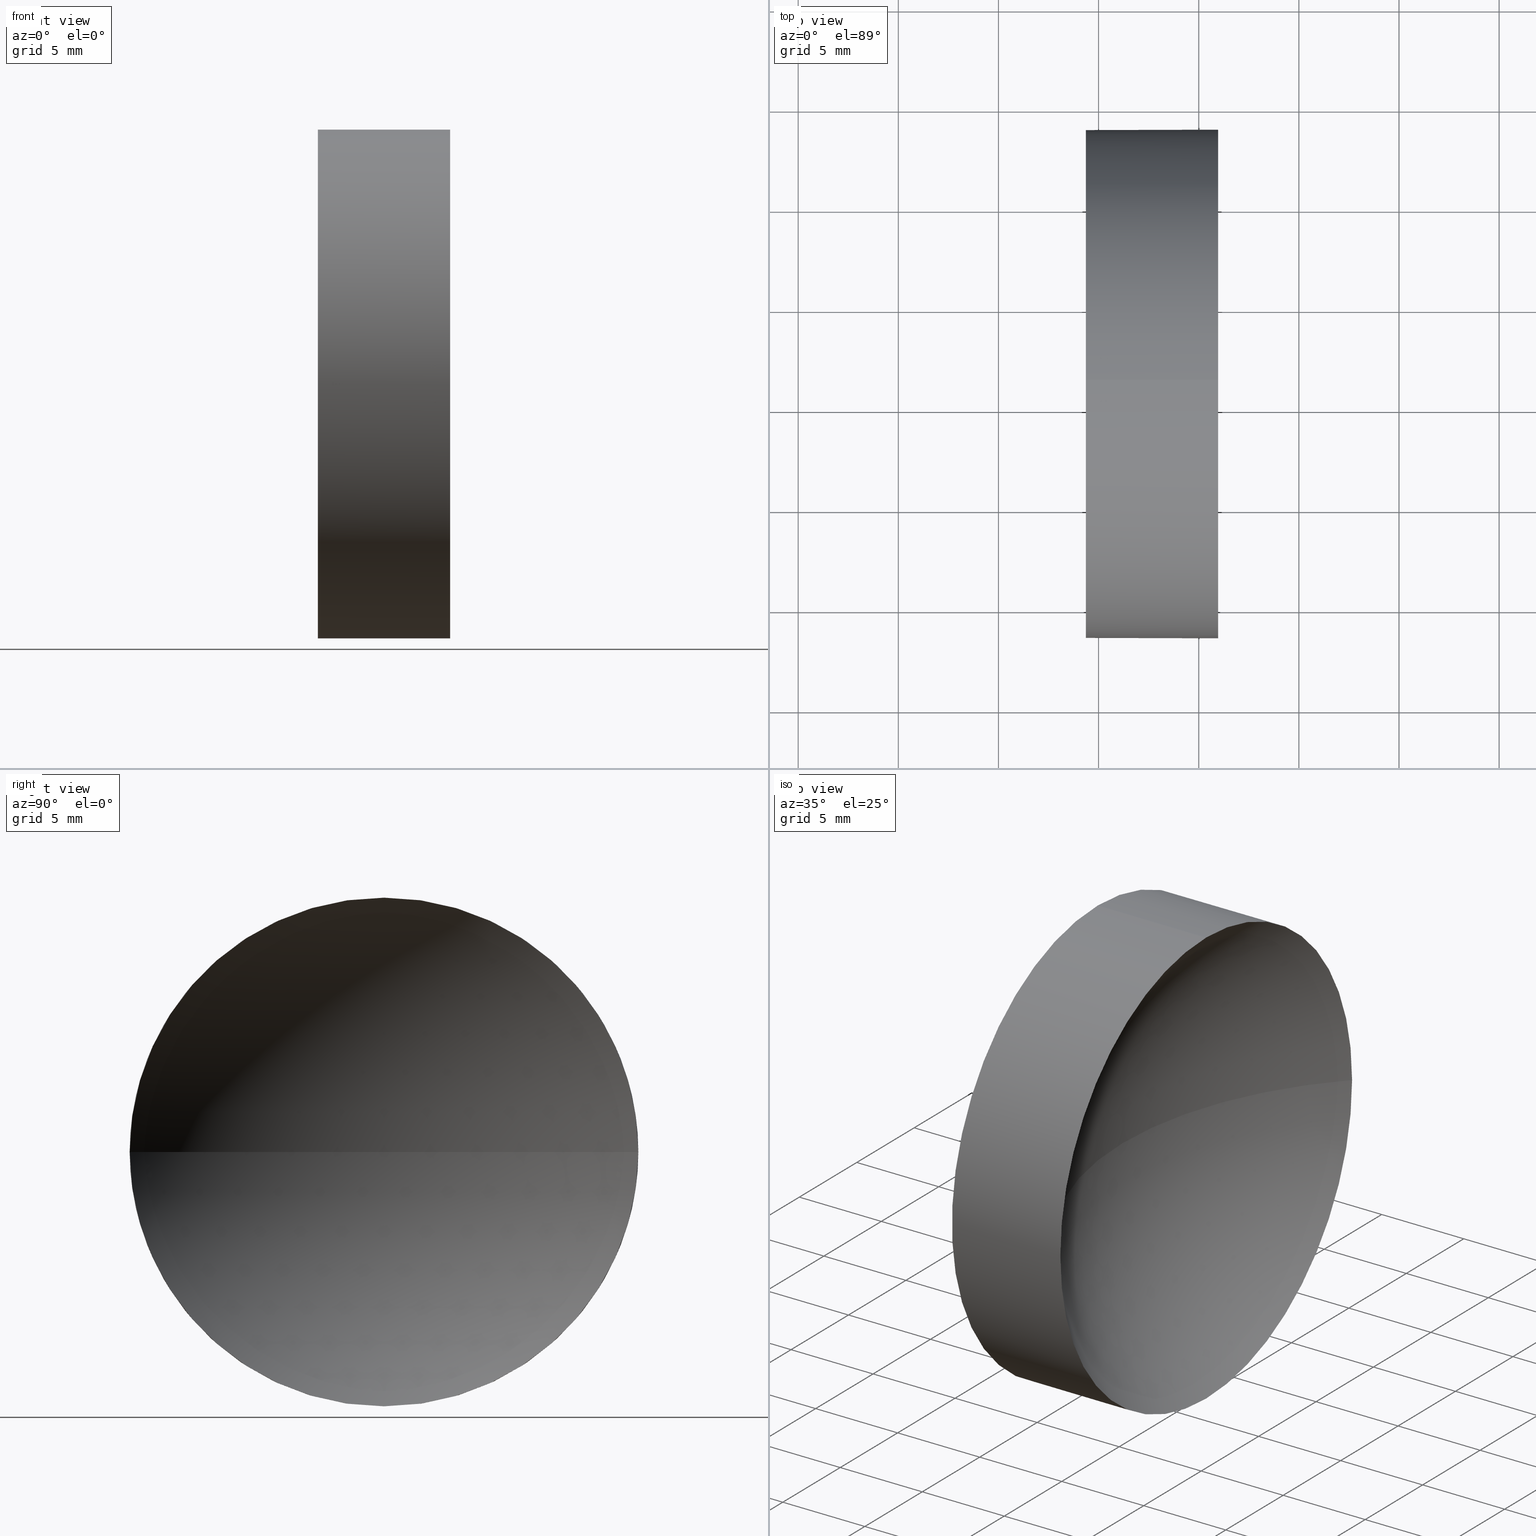
[diagram: canonical four-view strip — front | top / right | iso, engineering-drawing reading convention]
A machine part, canonical four-view strip (front | top / right | iso — engineering-drawing reading convention). The complete STEP part file that produces these views, byte-faithful:
ISO-10303-21;
HEADER;
FILE_DESCRIPTION (( 'STEP AP214' ),
    '1' );
FILE_NAME ('120264.STEP',
    '2019-06-25T03:04:50',
    ( '' ),
    ( '' ),
    'SwSTEP 2.0',
    'SolidWorks 2016',
    '' );
FILE_SCHEMA (( 'AUTOMOTIVE_DESIGN' ));
ENDSEC;

DATA;
#1 = APPLICATION_PROTOCOL_DEFINITION ( 'draft international standard', 'automotive_design', 1998, #42 ) ;
#2 = UNCERTAINTY_MEASURE_WITH_UNIT (LENGTH_MEASURE( 1.000000000000000100E-005 ), #59, 'distance_accuracy_value', 'NONE');
#3 = COLOUR_RGB ( '',1.000000000000000000, 1.000000000000000000, 1.000000000000000000 ) ;
#4 = CARTESIAN_POINT ( 'NONE',  ( 139.2029307920347200, 71.19398908659371700, 0.0000000000000000000 ) ) ;
#5 = PRODUCT_RELATED_PRODUCT_CATEGORY ( 'part', '', ( #98 ) ) ;
#6 =( NAMED_UNIT ( * ) SI_UNIT ( $, .STERADIAN. ) SOLID_ANGLE_UNIT ( ) );
#7 =( NAMED_UNIT ( * ) SI_UNIT ( $, .STERADIAN. ) SOLID_ANGLE_UNIT ( ) );
#8 = ORIENTED_EDGE ( 'NONE', *, *, #110, .T. ) ;
#9 = PRESENTATION_LAYER_ASSIGNMENT (  '', '', ( #184 ) ) ;
#10 = CARTESIAN_POINT ( 'NONE',  ( 125.9716950220848900, 71.19398908659370300, 0.0000000000000000000 ) ) ;
#11 = CARTESIAN_POINT ( 'NONE',  ( 120.8629307920347200, 71.19398908659371700, 0.0000000000000000000 ) ) ;
#12 = EDGE_CURVE ( 'NONE', #167, #62, #173, .T. ) ;
#13 = AXIS2_PLACEMENT_3D ( 'NONE', #4, #126, #43 ) ;
#14 = AXIS2_PLACEMENT_3D ( 'NONE', #89, #103, #102 ) ;
#15 = DIRECTION ( 'NONE',  ( -1.000000000000000000, -0.0000000000000000000, -0.0000000000000000000 ) ) ;
#16 = FILL_AREA_STYLE_COLOUR ( '', #68 ) ;
#17 = ORIENTED_EDGE ( 'NONE', *, *, #110, .F. ) ;
#18 = CARTESIAN_POINT ( 'NONE',  ( 125.9716950220848900, 83.89398908659370600, 1.555301434917137400E-015 ) ) ;
#19 = CARTESIAN_POINT ( 'NONE',  ( 125.9716950220848900, 71.19398908659370300, 0.0000000000000000000 ) ) ;
#20 = CARTESIAN_POINT ( 'NONE',  ( 119.3629307920347200, 71.19398908659370300, 12.70000000000000300 ) ) ;
#21 = VERTEX_POINT ( 'NONE', #45 ) ;
#22 = ORIENTED_EDGE ( 'NONE', *, *, #180, .F. ) ;
#23 = ADVANCED_FACE ( 'NONE', ( #178 ), #57, .F. ) ;
#24 = VECTOR ( 'NONE', #15, 1000.000000000000000 ) ;
#25 = CARTESIAN_POINT ( 'NONE',  ( 119.3629307920347200, 71.19398908659370300, 0.0000000000000000000 ) ) ;
#26 = CARTESIAN_POINT ( 'NONE',  ( 111.9552297575605700, 71.19398908659370300, 0.0000000000000000000 ) ) ;
#27 =( GEOMETRIC_REPRESENTATION_CONTEXT ( 3 ) GLOBAL_UNCERTAINTY_ASSIGNED_CONTEXT ( ( #143 ) ) GLOBAL_UNIT_ASSIGNED_CONTEXT ( ( #107, #175, #132 ) ) REPRESENTATION_CONTEXT ( 'NONE', 'WORKASPACE' ) );
#28 = ORIENTED_EDGE ( 'NONE', *, *, #55, .F. ) ;
#29 = LINE ( 'NONE', #147, #24 ) ;
#30 = VERTEX_POINT ( 'NONE', #20 ) ;
#31 = CARTESIAN_POINT ( 'NONE',  ( 125.9716950220848900, 71.19398908659370300, 0.0000000000000000000 ) ) ;
#32 = EDGE_CURVE ( 'NONE', #62, #133, #111, .T. ) ;
#33 = AXIS2_PLACEMENT_3D ( 'NONE', #19, #146, #159 ) ;
#34 = SURFACE_STYLE_USAGE ( .BOTH. , #47 ) ;
#35 = CIRCLE ( 'NONE', #65, 12.70000000000000300 ) ;
#36 = ORIENTED_EDGE ( 'NONE', *, *, #41, .F. ) ;
#37 = CARTESIAN_POINT ( 'NONE',  ( 139.2029307920347200, 71.19398908659371700, 0.0000000000000000000 ) ) ;
#38 = EDGE_LOOP ( 'NONE', ( #22, #162, #155, #104, #17 ) ) ;
#39 = PRESENTATION_LAYER_ASSIGNMENT (  '', '', ( #161 ) ) ;
#40 = CARTESIAN_POINT ( 'NONE',  ( 125.9716950220848900, 71.19398908659370300, -12.70000000000000300 ) ) ;
#41 = EDGE_CURVE ( 'NONE', #62, #134, #73, .T. ) ;
#42 = APPLICATION_CONTEXT ( 'automotive_design' ) ;
#43 = DIRECTION ( 'NONE',  ( 0.0000000000000000000, -1.000000000000000000, 0.0000000000000000000 ) ) ;
#44 = ORIENTED_EDGE ( 'NONE', *, *, #165, .T. ) ;
#45 = CARTESIAN_POINT ( 'NONE',  ( 125.9716950220848900, 58.49398908659371400, 0.0000000000000000000 ) ) ;
#46 = PRODUCT_DEFINITION_FORMATION_WITH_SPECIFIED_SOURCE ( '�κ�', '', #98, .NOT_KNOWN. ) ;
#47 = SURFACE_SIDE_STYLE ('',( #63 ) ) ;
#48 = FILL_AREA_STYLE ('',( #16 ) ) ;
#49 = CARTESIAN_POINT ( 'NONE',  ( 111.9552297575605700, 71.19398908659370300, -12.70000000000000300 ) ) ;
#50 = FACE_OUTER_BOUND ( 'NONE', #160, .T. ) ;
#51 = CARTESIAN_POINT ( 'NONE',  ( 125.9716950220848900, 71.19398908659370300, 12.70000000000000300 ) ) ;
#52 = EDGE_CURVE ( 'NONE', #21, #133, #130, .T. ) ;
#53 = CIRCLE ( 'NONE', #153, 12.70000000000000300 ) ;
#54 = DIRECTION ( 'NONE',  ( -1.000000000000000000, -0.0000000000000000000, -0.0000000000000000000 ) ) ;
#55 = EDGE_CURVE ( 'NONE', #167, #30, #29, .T. ) ;
#56 = DIRECTION ( 'NONE',  ( 1.000000000000000000, 0.0000000000000000000, 0.0000000000000000000 ) ) ;
#57 = PLANE ( 'NONE',  #82 ) ;
#58 = DIRECTION ( 'NONE',  ( 0.0000000000000000000, -1.000000000000000000, -1.224646799147353000E-016 ) ) ;
#59 =( LENGTH_UNIT ( ) NAMED_UNIT ( * ) SI_UNIT ( .MILLI., .METRE. ) );
#60 = DIRECTION ( 'NONE',  ( 0.0000000000000000000, 0.0000000000000000000, 1.000000000000000000 ) ) ;
#61 = MECHANICAL_DESIGN_GEOMETRIC_PRESENTATION_REPRESENTATION (  '', ( #161 ), #66 ) ;
#62 = VERTEX_POINT ( 'NONE', #18 ) ;
#63 = SURFACE_STYLE_FILL_AREA ( #48 ) ;
#64 = DIRECTION ( 'NONE',  ( -1.000000000000000000, -0.0000000000000000000, -0.0000000000000000000 ) ) ;
#65 = AXIS2_PLACEMENT_3D ( 'NONE', #10, #54, #156 ) ;
#66 =( GEOMETRIC_REPRESENTATION_CONTEXT ( 3 ) GLOBAL_UNCERTAINTY_ASSIGNED_CONTEXT ( ( #2 ) ) GLOBAL_UNIT_ASSIGNED_CONTEXT ( ( #59, #148, #6 ) ) REPRESENTATION_CONTEXT ( 'NONE', 'WORKASPACE' ) );
#67 = ORIENTED_EDGE ( 'NONE', *, *, #12, .T. ) ;
#68 = COLOUR_RGB ( '',1.000000000000000000, 1.000000000000000000, 1.000000000000000000 ) ;
#69 = ORIENTED_EDGE ( 'NONE', *, *, #180, .T. ) ;
#70 = SHAPE_DEFINITION_REPRESENTATION ( #170, #83 ) ;
#71 = AXIS2_PLACEMENT_3D ( 'NONE', #127, #172, #77 ) ;
#72 = MECHANICAL_DESIGN_GEOMETRIC_PRESENTATION_REPRESENTATION (  '', ( #184 ), #27 ) ;
#73 = CIRCLE ( 'NONE', #118, 12.70000000000000300 ) ;
#74 = CARTESIAN_POINT ( 'NONE',  ( 0.0000000000000000000, 0.0000000000000000000, 0.0000000000000000000 ) ) ;
#75 = AXIS2_PLACEMENT_3D ( 'NONE', #183, #94, #123 ) ;
#76 =( GEOMETRIC_REPRESENTATION_CONTEXT ( 3 ) GLOBAL_UNCERTAINTY_ASSIGNED_CONTEXT ( ( #120 ) ) GLOBAL_UNIT_ASSIGNED_CONTEXT ( ( #119, #121, #7 ) ) REPRESENTATION_CONTEXT ( 'NONE', 'WORKASPACE' ) );
#77 = DIRECTION ( 'NONE',  ( 0.0000000000000000000, 0.0000000000000000000, 1.000000000000000000 ) ) ;
#78 = CARTESIAN_POINT ( 'NONE',  ( 139.2029307920347200, 71.19398908659371700, 0.0000000000000000000 ) ) ;
#79 = VERTEX_POINT ( 'NONE', #122 ) ;
#80 = ADVANCED_FACE ( 'NONE', ( #135 ), #181, .F. ) ;
#81 = DIRECTION ( 'NONE',  ( 0.0000000000000000000, 0.0000000000000000000, 1.000000000000000000 ) ) ;
#82 = AXIS2_PLACEMENT_3D ( 'NONE', #171, #174, #85 ) ;
#83 = ADVANCED_BREP_SHAPE_REPRESENTATION ( '120264', ( #154, #138 ), #76 ) ;
#84 = CYLINDRICAL_SURFACE ( 'NONE', #14, 12.70000000000000300 ) ;
#85 = DIRECTION ( 'NONE',  ( 0.0000000000000000000, 0.0000000000000000000, -1.000000000000000000 ) ) ;
#86 = DIRECTION ( 'NONE',  ( 0.0000000000000000000, 0.0000000000000000000, 1.000000000000000000 ) ) ;
#87 = ORIENTED_EDGE ( 'NONE', *, *, #41, .T. ) ;
#88 = EDGE_CURVE ( 'NONE', #134, #21, #35, .T. ) ;
#89 = CARTESIAN_POINT ( 'NONE',  ( 111.9552297575605700, 71.19398908659370300, 0.0000000000000000000 ) ) ;
#90 = FILL_AREA_STYLE_COLOUR ( '', #3 ) ;
#91 = AXIS2_PLACEMENT_3D ( 'NONE', #78, #116, #128 ) ;
#92 = ORIENTED_EDGE ( 'NONE', *, *, #165, .F. ) ;
#93 = LINE ( 'NONE', #49, #139 ) ;
#94 = DIRECTION ( 'NONE',  ( -1.000000000000000000, -0.0000000000000000000, -0.0000000000000000000 ) ) ;
#95 = ADVANCED_FACE ( 'NONE', ( #177 ), #99, .F. ) ;
#96 = AXIS2_PLACEMENT_3D ( 'NONE', #37, #145, #58 ) ;
#97 = ORIENTED_EDGE ( 'NONE', *, *, #52, .F. ) ;
#98 = PRODUCT ( '120264', '120264', '', ( #140 ) ) ;
#99 = SPHERICAL_SURFACE ( 'NONE', #101, 18.33999999999999600 ) ;
#100 = DIRECTION ( 'NONE',  ( 0.0000000000000000000, 0.0000000000000000000, 1.000000000000000000 ) ) ;
#101 = AXIS2_PLACEMENT_3D ( 'NONE', #113, #81, #124 ) ;
#102 = DIRECTION ( 'NONE',  ( 0.0000000000000000000, 0.0000000000000000000, 1.000000000000000000 ) ) ;
#103 = DIRECTION ( 'NONE',  ( -1.000000000000000000, -0.0000000000000000000, -0.0000000000000000000 ) ) ;
#104 = ORIENTED_EDGE ( 'NONE', *, *, #55, .T. ) ;
#105 = FACE_OUTER_BOUND ( 'NONE', #38, .T. ) ;
#106 = EDGE_LOOP ( 'NONE', ( #182, #152, #137, #115 ) ) ;
#107 =( LENGTH_UNIT ( ) NAMED_UNIT ( * ) SI_UNIT ( .MILLI., .METRE. ) );
#108 = FILL_AREA_STYLE ('',( #90 ) ) ;
#109 = EDGE_LOOP ( 'NONE', ( #44, #8 ) ) ;
#110 = EDGE_CURVE ( 'NONE', #79, #30, #169, .T. ) ;
#111 = CIRCLE ( 'NONE', #96, 18.33999999999999600 ) ;
#112 = PRESENTATION_STYLE_ASSIGNMENT (( #150 ) ) ;
#113 = CARTESIAN_POINT ( 'NONE',  ( 139.2029307920347200, 71.19398908659371700, 0.0000000000000000000 ) ) ;
#114 = AXIS2_PLACEMENT_3D ( 'NONE', #26, #164, #86 ) ;
#115 = ORIENTED_EDGE ( 'NONE', *, *, #52, .T. ) ;
#116 = DIRECTION ( 'NONE',  ( 0.0000000000000000000, 0.0000000000000000000, -1.000000000000000000 ) ) ;
#117 = DIRECTION ( 'NONE',  ( -1.000000000000000000, -0.0000000000000000000, -0.0000000000000000000 ) ) ;
#118 = AXIS2_PLACEMENT_3D ( 'NONE', #31, #129, #60 ) ;
#119 =( LENGTH_UNIT ( ) NAMED_UNIT ( * ) SI_UNIT ( .MILLI., .METRE. ) );
#120 = UNCERTAINTY_MEASURE_WITH_UNIT (LENGTH_MEASURE( 1.000000000000000100E-005 ), #119, 'distance_accuracy_value', 'NONE');
#121 =( NAMED_UNIT ( * ) PLANE_ANGLE_UNIT ( ) SI_UNIT ( $, .RADIAN. ) );
#122 = CARTESIAN_POINT ( 'NONE',  ( 119.3629307920347200, 71.19398908659370300, -12.70000000000000300 ) ) ;
#123 = DIRECTION ( 'NONE',  ( 0.0000000000000000000, 0.0000000000000000000, 1.000000000000000000 ) ) ;
#124 = DIRECTION ( 'NONE',  ( 0.0000000000000000000, -1.000000000000000000, 0.0000000000000000000 ) ) ;
#125 = EDGE_LOOP ( 'NONE', ( #36, #185, #97, #176 ) ) ;
#126 = DIRECTION ( 'NONE',  ( 0.0000000000000000000, 0.0000000000000000000, 1.000000000000000000 ) ) ;
#127 = CARTESIAN_POINT ( 'NONE',  ( 125.9716950220848900, 71.19398908659370300, 0.0000000000000000000 ) ) ;
#128 = DIRECTION ( 'NONE',  ( -1.000000000000000000, 0.0000000000000000000, 0.0000000000000000000 ) ) ;
#129 = DIRECTION ( 'NONE',  ( -1.000000000000000000, -0.0000000000000000000, -0.0000000000000000000 ) ) ;
#130 = CIRCLE ( 'NONE', #91, 18.33999999999999600 ) ;
#131 = SURFACE_SIDE_STYLE ('',( #151 ) ) ;
#132 =( NAMED_UNIT ( * ) SI_UNIT ( $, .STERADIAN. ) SOLID_ANGLE_UNIT ( ) );
#133 = VERTEX_POINT ( 'NONE', #11 ) ;
#134 = VERTEX_POINT ( 'NONE', #40 ) ;
#135 = FACE_OUTER_BOUND ( 'NONE', #106, .T. ) ;
#136 = ADVANCED_FACE ( 'NONE', ( #105 ), #186, .T. ) ;
#137 = ORIENTED_EDGE ( 'NONE', *, *, #158, .F. ) ;
#138 = AXIS2_PLACEMENT_3D ( 'NONE', #74, #100, #56 ) ;
#139 = VECTOR ( 'NONE', #64, 1000.000000000000000 ) ;
#140 = PRODUCT_CONTEXT ( 'NONE', #42, 'mechanical' ) ;
#141 = CLOSED_SHELL ( 'NONE', ( #166, #95, #80, #136, #23 ) ) ;
#142 = APPLICATION_PROTOCOL_DEFINITION ( 'draft international standard', 'automotive_design', 1998, #157 ) ;
#143 = UNCERTAINTY_MEASURE_WITH_UNIT (LENGTH_MEASURE( 1.000000000000000100E-005 ), #107, 'distance_accuracy_value', 'NONE');
#144 = DIRECTION ( 'NONE',  ( 0.0000000000000000000, 0.0000000000000000000, 1.000000000000000000 ) ) ;
#145 = DIRECTION ( 'NONE',  ( 0.0000000000000000000, -1.224646799147353200E-016, 1.000000000000000000 ) ) ;
#146 = DIRECTION ( 'NONE',  ( -1.000000000000000000, -0.0000000000000000000, -0.0000000000000000000 ) ) ;
#147 = CARTESIAN_POINT ( 'NONE',  ( 111.9552297575605700, 71.19398908659370300, 12.70000000000000300 ) ) ;
#148 =( NAMED_UNIT ( * ) PLANE_ANGLE_UNIT ( ) SI_UNIT ( $, .RADIAN. ) );
#149 = PRESENTATION_STYLE_ASSIGNMENT (( #34 ) ) ;
#150 = SURFACE_STYLE_USAGE ( .BOTH. , #131 ) ;
#151 = SURFACE_STYLE_FILL_AREA ( #108 ) ;
#152 = ORIENTED_EDGE ( 'NONE', *, *, #12, .F. ) ;
#153 = AXIS2_PLACEMENT_3D ( 'NONE', #25, #117, #144 ) ;
#154 = MANIFOLD_SOLID_BREP ( '��ת1', #141 ) ;
#155 = ORIENTED_EDGE ( 'NONE', *, *, #158, .T. ) ;
#156 = DIRECTION ( 'NONE',  ( 0.0000000000000000000, 0.0000000000000000000, 1.000000000000000000 ) ) ;
#157 = APPLICATION_CONTEXT ( 'automotive_design' ) ;
#158 = EDGE_CURVE ( 'NONE', #21, #167, #163, .T. ) ;
#159 = DIRECTION ( 'NONE',  ( 0.0000000000000000000, 0.0000000000000000000, 1.000000000000000000 ) ) ;
#160 = EDGE_LOOP ( 'NONE', ( #87, #69, #92, #28, #67 ) ) ;
#161 = STYLED_ITEM ( 'NONE', ( #149 ), #154 ) ;
#162 = ORIENTED_EDGE ( 'NONE', *, *, #88, .T. ) ;
#163 = CIRCLE ( 'NONE', #33, 12.70000000000000300 ) ;
#164 = DIRECTION ( 'NONE',  ( -1.000000000000000000, -0.0000000000000000000, -0.0000000000000000000 ) ) ;
#165 = EDGE_CURVE ( 'NONE', #30, #79, #53, .T. ) ;
#166 = ADVANCED_FACE ( 'NONE', ( #50 ), #84, .T. ) ;
#167 = VERTEX_POINT ( 'NONE', #51 ) ;
#168 = PRODUCT_DEFINITION ( 'δ֪', '', #46, #179 ) ;
#169 = CIRCLE ( 'NONE', #75, 12.70000000000000300 ) ;
#170 = PRODUCT_DEFINITION_SHAPE ( 'NONE', 'NONE',  #168 ) ;
#171 = CARTESIAN_POINT ( 'NONE',  ( 119.3629307920347200, 71.19398908659370300, 0.0000000000000000000 ) ) ;
#172 = DIRECTION ( 'NONE',  ( -1.000000000000000000, -0.0000000000000000000, -0.0000000000000000000 ) ) ;
#173 = CIRCLE ( 'NONE', #71, 12.70000000000000300 ) ;
#174 = DIRECTION ( 'NONE',  ( 1.000000000000000000, 0.0000000000000000000, 0.0000000000000000000 ) ) ;
#175 =( NAMED_UNIT ( * ) PLANE_ANGLE_UNIT ( ) SI_UNIT ( $, .RADIAN. ) );
#176 = ORIENTED_EDGE ( 'NONE', *, *, #88, .F. ) ;
#177 = FACE_OUTER_BOUND ( 'NONE', #125, .T. ) ;
#178 = FACE_OUTER_BOUND ( 'NONE', #109, .T. ) ;
#179 = PRODUCT_DEFINITION_CONTEXT ( 'detailed design', #157, 'design' ) ;
#180 = EDGE_CURVE ( 'NONE', #134, #79, #93, .T. ) ;
#181 = SPHERICAL_SURFACE ( 'NONE', #13, 18.33999999999999600 ) ;
#182 = ORIENTED_EDGE ( 'NONE', *, *, #32, .F. ) ;
#183 = CARTESIAN_POINT ( 'NONE',  ( 119.3629307920347200, 71.19398908659370300, 0.0000000000000000000 ) ) ;
#184 = STYLED_ITEM ( 'NONE', ( #112 ), #83 ) ;
#185 = ORIENTED_EDGE ( 'NONE', *, *, #32, .T. ) ;
#186 = CYLINDRICAL_SURFACE ( 'NONE', #114, 12.70000000000000300 ) ;
ENDSEC;
END-ISO-10303-21;
